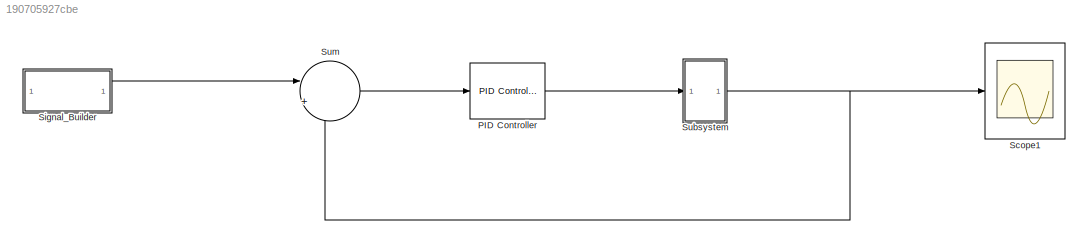
MODEL slx_190705927cbe
KIND model
CONFIG AbsTol = auto
CONFIG EnableMultiTasking = off
CONFIG FixedStep = auto
CONFIG MaxStep = auto
CONFIG MinStep = auto
CONFIG RelTol = 1e-3
CONFIG SampleTimeConstraint = Unconstrained
CONFIG SolverName = VariableStepAuto
CONFIG StartTime = 0.0
CONFIG StopTime = 1000
BLOCK [Reference] PID Controller  REF=slpidlib/PID Controller
  LibrarySourceBlock = simulink/Continuous/PID Controller
  SourceBlock = slpidlib/PID Controller
  SourceType = PID 1dof
BLOCK [Scope] Scope1
  Floating = off
  NumInputPorts = 1
  ScopeSpecificationString = Simulink.scopes.TimeScopeBlockCfg('CurrentConfiguration', extmgr.ConfigurationSet(extmgr.Configuration('Core','General UI',true),extmgr.Configuration('Core','Source UI',true),extmgr.Configuration('Sources','WiredSimulink',true,'DataLoggingVariableName','ScopeData1'),extmgr.Configuration('Visuals','Time Domain',true,'SerializedDisplays',{struct('MinYLimReal','-0.1744','MaxYLimReal','1.56962','YLabe...<+1414ch>
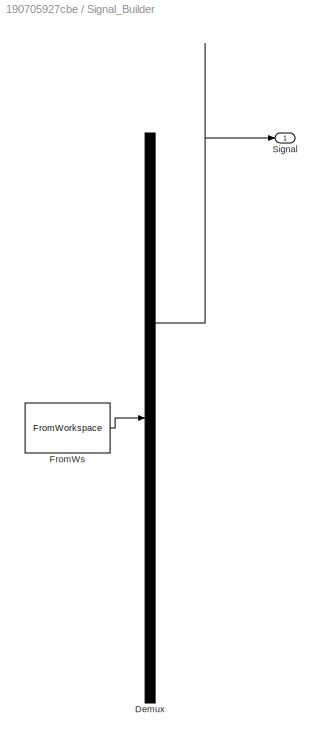
BLOCK [SubSystem] Signal_Builder
  ClipboardFcn = sigbuilder_block('clipboard');
  CloseFcn = sigbuilder_block('close');
  ContinueFcn = sigbuilder_block('continue');
  CopyFcn = sigbuilder_block('copy');
  DeleteFcn = sigbuilder_block('delete');
  LoadFcn = sigbuilder_block('load');
  MaskHideContents = on
  ModelCloseFcn = sigbuilder_block('modelClose');
  NameChangeFcn = sigbuilder_block('namechange');
  OpenFcn = sigbuilder_block('open',[184 155 551 361 ]);
  PauseFcn = sigbuilder_block('pause');
  PreSaveFcn = sigbuilder_block('preSave');
  StartFcn = sigbuilder_block('start');
  StopFcn = sigbuilder_block('stop');
  Tag = STV Subsys
BLOCK [Demux] Signal_Builder/Demux
  DisplayOption = none
  Outputs = 1
  Tag = STV Demux
BLOCK [FromWorkspace] Signal_Builder/FromWs
  Tag = STV FromWs
  VariableName = tuvar
BLOCK [Outport] Signal_Builder/Signal 
  Tag = STV Outport
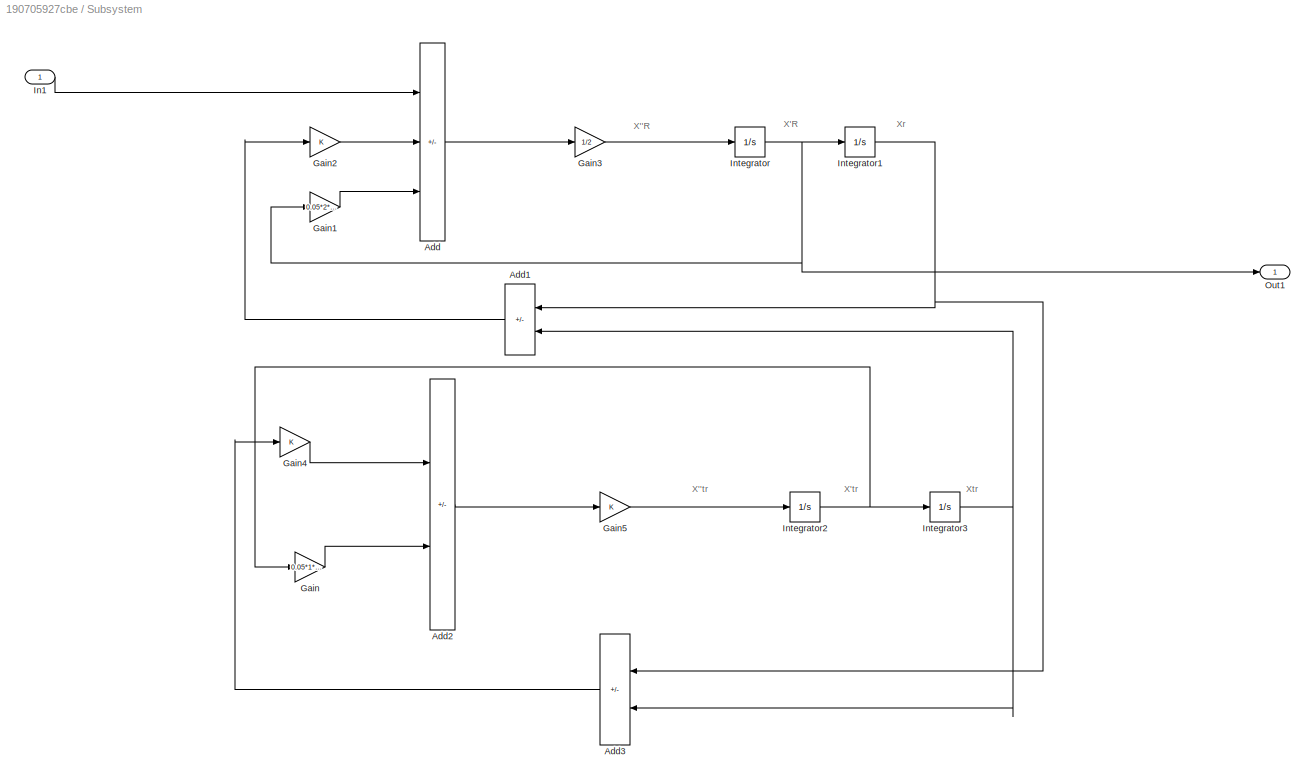
BLOCK [SubSystem] Subsystem
BLOCK [Sum] Subsystem/Add
  IconShape = rectangular
  Inputs = +--
BLOCK [Sum] Subsystem/Add1
  IconShape = rectangular
  Inputs = +-
BLOCK [Sum] Subsystem/Add2
  IconShape = rectangular
  Inputs = +-
BLOCK [Sum] Subsystem/Add3
  IconShape = rectangular
  Inputs = +-
BLOCK [Gain] Subsystem/Gain
  Gain = 0.05*1*9.81
BLOCK [Gain] Subsystem/Gain1
  Gain = 0.05*2*9.81
BLOCK [Gain] Subsystem/Gain2
BLOCK [Gain] Subsystem/Gain3
  Gain = 1/2
BLOCK [Gain] Subsystem/Gain4
BLOCK [Gain] Subsystem/Gain5
BLOCK [Inport] Subsystem/In1
BLOCK [Integrator] Subsystem/Integrator
BLOCK [Integrator] Subsystem/Integrator1
BLOCK [Integrator] Subsystem/Integrator2
BLOCK [Integrator] Subsystem/Integrator3
BLOCK [Outport] Subsystem/Out1
BLOCK [Sum] Sum
  Inputs = |+-
ANNOTATION Subsystem: X''R
ANNOTATION Subsystem: X''tr
ANNOTATION Subsystem: X'R
ANNOTATION Subsystem: X'tr
ANNOTATION Subsystem: Xr
ANNOTATION Subsystem: Xtr
LINE PID Controller:1 -> Subsystem:1
LINE Signal_Builder:1 -> Sum:1
LINE Subsystem/Add1:1 -> Subsystem/Gain2:1
LINE Subsystem/Add2:1 -> Subsystem/Gain5:1
LINE Subsystem/Add3:1 -> Subsystem/Gain4:1
LINE Subsystem/Add:1 -> Subsystem/Gain3:1
LINE Subsystem/Gain1:1 -> Subsystem/Add:3
LINE Subsystem/Gain2:1 -> Subsystem/Add:2
LINE Subsystem/Gain3:1 -> Subsystem/Integrator:1
LINE Subsystem/Gain4:1 -> Subsystem/Add2:1
LINE Subsystem/Gain5:1 -> Subsystem/Integrator2:1
LINE Subsystem/Gain:1 -> Subsystem/Add2:2
LINE Subsystem/In1:1 -> Subsystem/Add:1
NET Subsystem/Integrator1:1 -> Subsystem/Add1:1, Subsystem/Add3:1
NET Subsystem/Integrator2:1 -> Subsystem/Gain:1, Subsystem/Integrator3:1
NET Subsystem/Integrator3:1 -> Subsystem/Add1:2, Subsystem/Add3:2
NET Subsystem/Integrator:1 -> Subsystem/Gain1:1, Subsystem/Integrator1:1, Subsystem/Out1:1
NET Subsystem:1 -> Scope1:1, Sum:2
LINE Sum:1 -> PID Controller:1
note: NET lines group one-source signal fan-out (src -> all destinations, sorted); 1:1 wires keep LINE
